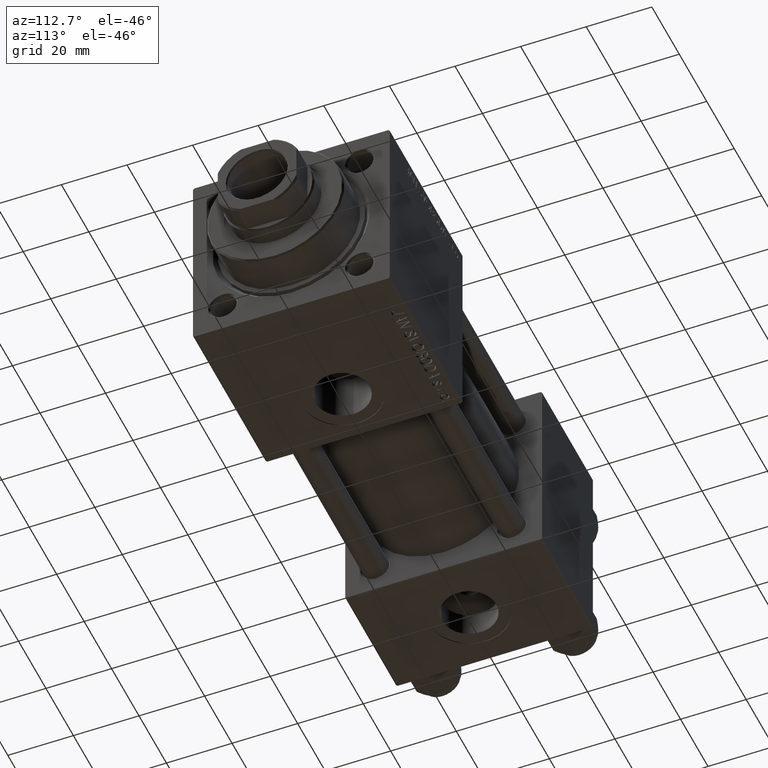
[diagram: clean part render]
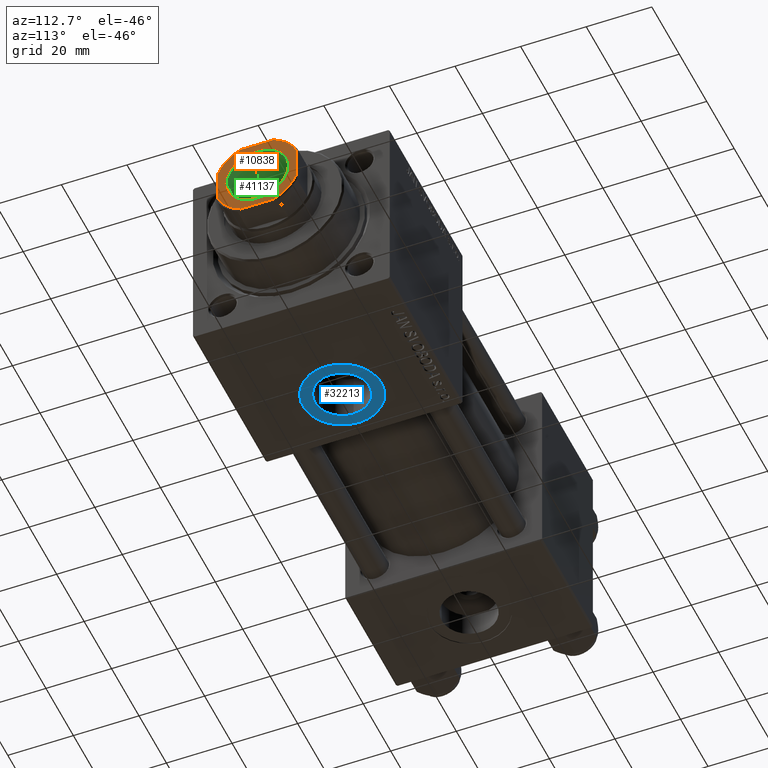
[diagram: same view with three faces highlighted in distinct colors, each labeled with its STEP entity id]
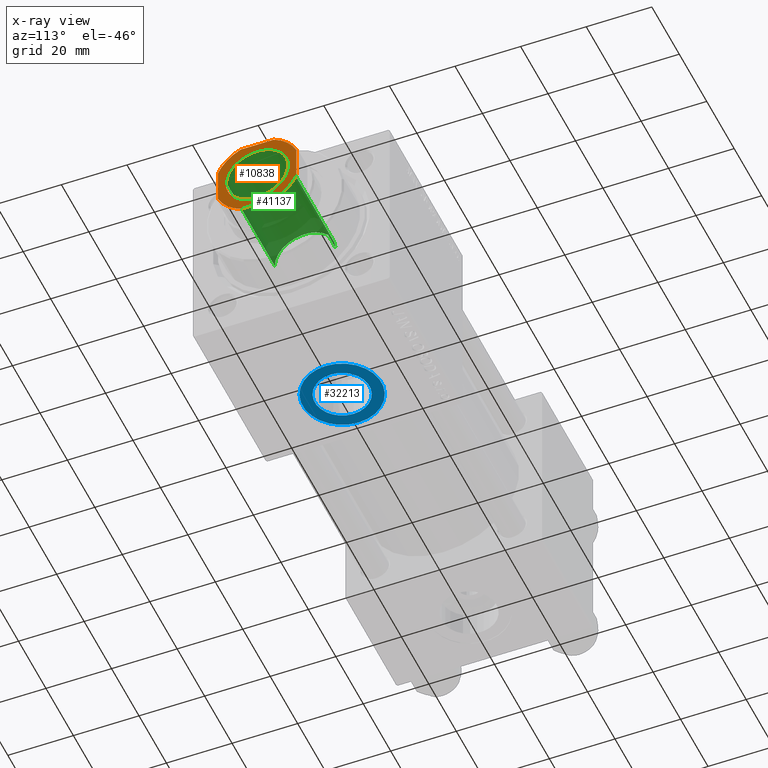
[diagram: x-ray of the same camera — body ghosted, the three highlighted faces saturated]
A machine part, auxiliary view with three faces highlighted in distinct colors.
The next image is the same camera in x-ray (body ghosted, the three faces saturated) — at least one of them is partly hidden behind the body in this view.
Their STEP definitions:

[orange] entity #10838 — the highlighted planar face has unit normal (1, 0, 0).
#24 = VERTEX_POINT ( 'NONE', #37870 ) ;
#1030 = DIRECTION ( 'NONE',  ( 1.000000000000000000, 0.000000000000000000, 0.000000000000000000 ) ) ;
#1404 = LINE ( 'NONE', #45811, #2542 ) ;
#1499 = DIRECTION ( 'NONE',  ( 7.228014483236695816E-17, -1.000000000000000000, 0.000000000000000000 ) ) ;
#1853 = DIRECTION ( 'NONE',  ( -0.000000000000000000, 0.000000000000000000, 1.000000000000000000 ) ) ;
#2056 = CARTESIAN_POINT ( 'NONE',  ( 0.000000000000000000, 0.000000000000000000, 136.0000000000000000 ) ) ;
#2216 = FACE_OUTER_BOUND ( 'NONE', #22733, .T. ) ;
#2223 = VERTEX_POINT ( 'NONE', #6493 ) ;
#2363 = ORIENTED_EDGE ( 'NONE', *, *, #4944, .T. ) ;
#2542 = VECTOR ( 'NONE', #46803, 1000.000000000000000 ) ;
#2609 = LINE ( 'NONE', #19169, #5156 ) ;
#3342 = CARTESIAN_POINT ( 'NONE',  ( 0.000000000000000000, 0.000000000000000000, 136.0000000000000000 ) ) ;
#4944 = EDGE_CURVE ( 'NONE', #51533, #5852, #44868, .T. ) ;
#5052 = CARTESIAN_POINT ( 'NONE',  ( -12.00000000000000000, 4.999999999999979572, 136.0000000000000000 ) ) ;
#5115 = AXIS2_PLACEMENT_3D ( 'NONE', #32278, #47296, #44369 ) ;
#5156 = VECTOR ( 'NONE', #14712, 1000.000000000000000 ) ;
#5558 = CARTESIAN_POINT ( 'NONE',  ( -9.549999999999975842, 1.169537693185719205E-15, 136.0000000000000000 ) ) ;
#5852 = VERTEX_POINT ( 'NONE', #21634 ) ;
#5910 = PLANE ( 'NONE',  #25246 ) ;
#6293 = EDGE_CURVE ( 'NONE', #24135, #51533, #47739, .T. ) ;
#6493 = CARTESIAN_POINT ( 'NONE',  ( 11.99999999999999822, 5.000000000000037303, 136.0000000000000000 ) ) ;
#6520 = DIRECTION ( 'NONE',  ( -0.000000000000000000, 0.000000000000000000, 1.000000000000000000 ) ) ;
#9273 = EDGE_CURVE ( 'NONE', #27870, #2223, #1404, .T. ) ;
#10116 = DIRECTION ( 'NONE',  ( 1.000000000000000000, 0.000000000000000000, 0.000000000000000000 ) ) ;
#10838 = ADVANCED_FACE ( 'NONE', ( #46104, #2216 ), #5910, .T. ) ;
#11301 = EDGE_CURVE ( 'NONE', #2223, #42247, #21908, .T. ) ;
#12447 = AXIS2_PLACEMENT_3D ( 'NONE', #35861, #27969, #50859 ) ;
#12492 = CARTESIAN_POINT ( 'NONE',  ( -4.999999999999987566, 11.99999999999999645, 136.0000000000000000 ) ) ;
#13194 = EDGE_CURVE ( 'NONE', #42247, #24135, #2609, .T. ) ;
#13375 = DIRECTION ( 'NONE',  ( 1.000000000000000000, 0.000000000000000000, 0.000000000000000000 ) ) ;
#13879 = ORIENTED_EDGE ( 'NONE', *, *, #44036, .T. ) ;
#14195 = ORIENTED_EDGE ( 'NONE', *, *, #6293, .T. ) ;
#14341 = CARTESIAN_POINT ( 'NONE',  ( 9.549999999999975842, 0.000000000000000000, 136.0000000000000000 ) ) ;
#14712 = DIRECTION ( 'NONE',  ( -1.000000000000000000, -0.000000000000000000, -0.000000000000000000 ) ) ;
#15252 = ORIENTED_EDGE ( 'NONE', *, *, #29958, .T. ) ;
#19169 = CARTESIAN_POINT ( 'NONE',  ( -12.00000000000000000, 11.99999999999999645, 136.0000000000000000 ) ) ;
#19179 = CIRCLE ( 'NONE', #12447, 13.00000000000002309 ) ;
#19709 = EDGE_CURVE ( 'NONE', #5852, #25809, #41652, .T. ) ;
#21634 = CARTESIAN_POINT ( 'NONE',  ( -12.00000000000000000, -5.000000000000039968, 136.0000000000000000 ) ) ;
#21908 = CIRCLE ( 'NONE', #51274, 13.00000000000001243 ) ;
#22684 = AXIS2_PLACEMENT_3D ( 'NONE', #42062, #1853, #33118 ) ;
#22733 = EDGE_LOOP ( 'NONE', ( #31438, #36029, #51713, #14195, #2363, #37154, #37573, #15252 ) ) ;
#24135 = VERTEX_POINT ( 'NONE', #12492 ) ;
#25086 = AXIS2_PLACEMENT_3D ( 'NONE', #3342, #35651, #50912 ) ;
#25246 = AXIS2_PLACEMENT_3D ( 'NONE', #49781, #42174, #10116 ) ;
#25809 = VERTEX_POINT ( 'NONE', #46165 ) ;
#27870 = VERTEX_POINT ( 'NONE', #45857 ) ;
#27913 = AXIS2_PLACEMENT_3D ( 'NONE', #51019, #30791, #31308 ) ;
#27969 = DIRECTION ( 'NONE',  ( -0.000000000000000000, 0.000000000000000000, 1.000000000000000000 ) ) ;
#29359 = CARTESIAN_POINT ( 'NONE',  ( -12.00000000000000000, 11.99999999999999645, 136.0000000000000000 ) ) ;
#29411 = LINE ( 'NONE', #41246, #49716 ) ;
#29958 = EDGE_CURVE ( 'NONE', #24, #27870, #19179, .T. ) ;
#30791 = DIRECTION ( 'NONE',  ( 0.000000000000000000, -0.000000000000000000, -1.000000000000000000 ) ) ;
#31308 = DIRECTION ( 'NONE',  ( 1.000000000000000000, 0.000000000000000000, 0.000000000000000000 ) ) ;
#31438 = ORIENTED_EDGE ( 'NONE', *, *, #9273, .T. ) ;
#32278 = CARTESIAN_POINT ( 'NONE',  ( 0.000000000000000000, 0.000000000000000000, 136.0000000000000000 ) ) ;
#33118 = DIRECTION ( 'NONE',  ( 1.000000000000000000, 0.000000000000000000, 0.000000000000000000 ) ) ;
#34431 = VERTEX_POINT ( 'NONE', #14341 ) ;
#35651 = DIRECTION ( 'NONE',  ( -0.000000000000000000, 0.000000000000000000, 1.000000000000000000 ) ) ;
#35861 = CARTESIAN_POINT ( 'NONE',  ( 0.000000000000000000, 0.000000000000000000, 136.0000000000000000 ) ) ;
#36029 = ORIENTED_EDGE ( 'NONE', *, *, #11301, .T. ) ;
#37154 = ORIENTED_EDGE ( 'NONE', *, *, #19709, .T. ) ;
#37573 = ORIENTED_EDGE ( 'NONE', *, *, #43143, .T. ) ;
#37870 = CARTESIAN_POINT ( 'NONE',  ( 5.000000000000053291, -12.00000000000000355, 136.0000000000000000 ) ) ;
#39234 = EDGE_CURVE ( 'NONE', #50650, #34431, #42046, .T. ) ;
#40157 = VECTOR ( 'NONE', #1499, 1000.000000000000000 ) ;
#41246 = CARTESIAN_POINT ( 'NONE',  ( -11.99999999999999822, -12.00000000000000355, 136.0000000000000000 ) ) ;
#41652 = CIRCLE ( 'NONE', #22684, 13.00000000000001421 ) ;
#42046 = CIRCLE ( 'NONE', #5115, 9.549999999999975842 ) ;
#42062 = CARTESIAN_POINT ( 'NONE',  ( 0.000000000000000000, 0.000000000000000000, 136.0000000000000000 ) ) ;
#42174 = DIRECTION ( 'NONE',  ( -0.000000000000000000, 0.000000000000000000, 1.000000000000000000 ) ) ;
#42247 = VERTEX_POINT ( 'NONE', #43115 ) ;
#43115 = CARTESIAN_POINT ( 'NONE',  ( 5.000000000000042633, 11.99999999999999645, 136.0000000000000000 ) ) ;
#43143 = EDGE_CURVE ( 'NONE', #25809, #24, #29411, .T. ) ;
#43775 = ORIENTED_EDGE ( 'NONE', *, *, #39234, .T. ) ;
#44036 = EDGE_CURVE ( 'NONE', #34431, #50650, #47218, .T. ) ;
#44273 = EDGE_LOOP ( 'NONE', ( #13879, #43775 ) ) ;
#44369 = DIRECTION ( 'NONE',  ( 1.000000000000000000, 0.000000000000000000, 0.000000000000000000 ) ) ;
#44868 = LINE ( 'NONE', #29359, #40157 ) ;
#45811 = CARTESIAN_POINT ( 'NONE',  ( 11.99999999999999645, 11.99999999999999645, 136.0000000000000000 ) ) ;
#45857 = CARTESIAN_POINT ( 'NONE',  ( 12.00000000000000178, -5.000000000000056843, 136.0000000000000000 ) ) ;
#46104 = FACE_BOUND ( 'NONE', #44273, .T. ) ;
#46165 = CARTESIAN_POINT ( 'NONE',  ( -5.000000000000031086, -12.00000000000000355, 136.0000000000000000 ) ) ;
#46803 = DIRECTION ( 'NONE',  ( -2.891205793294678326E-16, 1.000000000000000000, -0.000000000000000000 ) ) ;
#47218 = CIRCLE ( 'NONE', #27913, 9.549999999999975842 ) ;
#47296 = DIRECTION ( 'NONE',  ( 0.000000000000000000, -0.000000000000000000, -1.000000000000000000 ) ) ;
#47739 = CIRCLE ( 'NONE', #25086, 12.99999999999999289 ) ;
#49716 = VECTOR ( 'NONE', #1030, 1000.000000000000000 ) ;
#49781 = CARTESIAN_POINT ( 'NONE',  ( 0.000000000000000000, 0.000000000000000000, 136.0000000000000000 ) ) ;
#50650 = VERTEX_POINT ( 'NONE', #5558 ) ;
#50859 = DIRECTION ( 'NONE',  ( 1.000000000000000000, 0.000000000000000000, 0.000000000000000000 ) ) ;
#50912 = DIRECTION ( 'NONE',  ( 1.000000000000000000, 0.000000000000000000, 0.000000000000000000 ) ) ;
#51019 = CARTESIAN_POINT ( 'NONE',  ( 0.000000000000000000, 0.000000000000000000, 136.0000000000000000 ) ) ;
#51274 = AXIS2_PLACEMENT_3D ( 'NONE', #2056, #6520, #13375 ) ;
#51533 = VERTEX_POINT ( 'NONE', #5052 ) ;
#51713 = ORIENTED_EDGE ( 'NONE', *, *, #13194, .T. ) ;

[blue] entity #32213 — the highlighted planar face has unit normal (0, 0, -1).
#2824 = VERTEX_POINT ( 'NONE', #18439 ) ;
#3326 = ORIENTED_EDGE ( 'NONE', *, *, #20070, .T. ) ;
#3994 = ORIENTED_EDGE ( 'NONE', *, *, #4214, .F. ) ;
#4214 = EDGE_CURVE ( 'NONE', #25546, #2824, #19994, .T. ) ;
#4874 = EDGE_LOOP ( 'NONE', ( #3326, #34279 ) ) ;
#6372 = CIRCLE ( 'NONE', #51663, 8.330000000000003624 ) ;
#6917 = DIRECTION ( 'NONE',  ( 0.000000000000000000, 0.000000000000000000, -1.000000000000000000 ) ) ;
#9174 = AXIS2_PLACEMENT_3D ( 'NONE', #9194, #9455, #44667 ) ;
#9194 = CARTESIAN_POINT ( 'NONE',  ( 111.0000000000000000, 3.469446951953613794E-15, -29.79999999999999716 ) ) ;
#9455 = DIRECTION ( 'NONE',  ( 0.000000000000000000, 0.000000000000000000, -1.000000000000000000 ) ) ;
#10704 = VERTEX_POINT ( 'NONE', #36394 ) ;
#13880 = DIRECTION ( 'NONE',  ( -1.000000000000000000, 0.000000000000000000, 0.000000000000000000 ) ) ;
#15537 = ORIENTED_EDGE ( 'NONE', *, *, #20197, .F. ) ;
#18439 = CARTESIAN_POINT ( 'NONE',  ( 102.6700000000000017, 3.469446951953613794E-15, -29.79999999999999716 ) ) ;
#19994 = CIRCLE ( 'NONE', #23341, 8.330000000000003624 ) ;
#20070 = EDGE_CURVE ( 'NONE', #10704, #45597, #50822, .T. ) ;
#20197 = EDGE_CURVE ( 'NONE', #2824, #25546, #6372, .T. ) ;
#21720 = CIRCLE ( 'NONE', #51082, 11.99999999999999645 ) ;
#22435 = CARTESIAN_POINT ( 'NONE',  ( 111.0000000000000000, 3.469446951953613794E-15, -29.79999999999999716 ) ) ;
#23341 = AXIS2_PLACEMENT_3D ( 'NONE', #34068, #37754, #25935 ) ;
#25546 = VERTEX_POINT ( 'NONE', #42815 ) ;
#25935 = DIRECTION ( 'NONE',  ( -1.000000000000000000, 0.000000000000000000, 0.000000000000000000 ) ) ;
#27609 = EDGE_LOOP ( 'NONE', ( #15537, #3994 ) ) ;
#31039 = EDGE_CURVE ( 'NONE', #45597, #10704, #21720, .T. ) ;
#32213 = ADVANCED_FACE ( 'NONE', ( #45188, #40722 ), #36511, .T. ) ;
#32475 = CARTESIAN_POINT ( 'NONE',  ( 111.0000000000000000, 3.469446951953613794E-15, -29.79999999999999716 ) ) ;
#34068 = CARTESIAN_POINT ( 'NONE',  ( 111.0000000000000000, 3.469446951953613794E-15, -29.79999999999999716 ) ) ;
#34279 = ORIENTED_EDGE ( 'NONE', *, *, #31039, .T. ) ;
#36394 = CARTESIAN_POINT ( 'NONE',  ( 99.00000000000000000, 3.469446951953613794E-15, -29.79999999999999716 ) ) ;
#36511 = PLANE ( 'NONE',  #9174 ) ;
#36547 = AXIS2_PLACEMENT_3D ( 'NONE', #45666, #50122, #13880 ) ;
#37754 = DIRECTION ( 'NONE',  ( 0.000000000000000000, 0.000000000000000000, -1.000000000000000000 ) ) ;
#38450 = DIRECTION ( 'NONE',  ( -1.000000000000000000, 0.000000000000000000, 0.000000000000000000 ) ) ;
#39569 = CARTESIAN_POINT ( 'NONE',  ( 123.0000000000000000, 4.939023110930435178E-15, -29.79999999999999716 ) ) ;
#40722 = FACE_OUTER_BOUND ( 'NONE', #4874, .T. ) ;
#42815 = CARTESIAN_POINT ( 'NONE',  ( 119.3300000000000125, 4.489577735643358162E-15, -29.79999999999999716 ) ) ;
#43547 = DIRECTION ( 'NONE',  ( -1.000000000000000000, 0.000000000000000000, 0.000000000000000000 ) ) ;
#44572 = DIRECTION ( 'NONE',  ( 0.000000000000000000, 0.000000000000000000, -1.000000000000000000 ) ) ;
#44667 = DIRECTION ( 'NONE',  ( -1.000000000000000000, 0.000000000000000000, -0.000000000000000000 ) ) ;
#45188 = FACE_BOUND ( 'NONE', #27609, .T. ) ;
#45597 = VERTEX_POINT ( 'NONE', #39569 ) ;
#45666 = CARTESIAN_POINT ( 'NONE',  ( 111.0000000000000000, 3.469446951953613794E-15, -29.79999999999999716 ) ) ;
#50122 = DIRECTION ( 'NONE',  ( 0.000000000000000000, 0.000000000000000000, -1.000000000000000000 ) ) ;
#50822 = CIRCLE ( 'NONE', #36547, 11.99999999999999645 ) ;
#51082 = AXIS2_PLACEMENT_3D ( 'NONE', #22435, #6917, #38450 ) ;
#51663 = AXIS2_PLACEMENT_3D ( 'NONE', #32475, #44572, #43547 ) ;

[green] entity #41137 — the highlighted cylindrical surface (edge-blend (fillet) strip) has radius 9.25 mm, axis along (1, 0, 0).
#1657 = CARTESIAN_POINT ( 'NONE',  ( 0.000000000000000000, 0.000000000000000000, 136.0000000000000000 ) ) ;
#2689 = AXIS2_PLACEMENT_3D ( 'NONE', #3854, #11759, #31460 ) ;
#2707 = FACE_OUTER_BOUND ( 'NONE', #49285, .T. ) ;
#3788 = CARTESIAN_POINT ( 'NONE',  ( 0.000000000000000000, 0.000000000000000000, 135.7000000000000455 ) ) ;
#3854 = CARTESIAN_POINT ( 'NONE',  ( 0.000000000000000000, 0.000000000000000000, 101.0000000000000000 ) ) ;
#7206 = ORIENTED_EDGE ( 'NONE', *, *, #38728, .F. ) ;
#11057 = AXIS2_PLACEMENT_3D ( 'NONE', #1657, #33453, #45797 ) ;
#11759 = DIRECTION ( 'NONE',  ( -0.000000000000000000, -0.000000000000000000, 1.000000000000000000 ) ) ;
#13496 = ORIENTED_EDGE ( 'NONE', *, *, #13994, .F. ) ;
#13994 = EDGE_CURVE ( 'NONE', #37055, #29589, #32056, .T. ) ;
#17246 = VECTOR ( 'NONE', #26833, 1000.000000000000000 ) ;
#22018 = EDGE_CURVE ( 'NONE', #25796, #50763, #29923, .T. ) ;
#23509 = EDGE_CURVE ( 'NONE', #37055, #25796, #43122, .T. ) ;
#24058 = CARTESIAN_POINT ( 'NONE',  ( 9.249999999999994671, 0.000000000000000000, 136.0000000000000000 ) ) ;
#25796 = VERTEX_POINT ( 'NONE', #38021 ) ;
#26833 = DIRECTION ( 'NONE',  ( -0.000000000000000000, -0.000000000000000000, 1.000000000000000000 ) ) ;
#28124 = ORIENTED_EDGE ( 'NONE', *, *, #22018, .T. ) ;
#29589 = VERTEX_POINT ( 'NONE', #37528 ) ;
#29923 = CIRCLE ( 'NONE', #30759, 9.249999999999994671 ) ;
#30512 = CARTESIAN_POINT ( 'NONE',  ( -9.249999999999992895, 1.132798289211300712E-15, 101.0000000000000000 ) ) ;
#30515 = CARTESIAN_POINT ( 'NONE',  ( -9.249999999999994671, 1.132798289211300909E-15, 136.0000000000000000 ) ) ;
#30759 = AXIS2_PLACEMENT_3D ( 'NONE', #3788, #51867, #51367 ) ;
#31120 = VECTOR ( 'NONE', #40076, 1000.000000000000000 ) ;
#31460 = DIRECTION ( 'NONE',  ( 1.000000000000000000, 0.000000000000000000, 0.000000000000000000 ) ) ;
#32056 = CIRCLE ( 'NONE', #2689, 9.249999999999992895 ) ;
#33453 = DIRECTION ( 'NONE',  ( -0.000000000000000000, -0.000000000000000000, 1.000000000000000000 ) ) ;
#34730 = CARTESIAN_POINT ( 'NONE',  ( 9.249999999999994671, 0.000000000000000000, 135.7000000000000455 ) ) ;
#36581 = ORIENTED_EDGE ( 'NONE', *, *, #23509, .T. ) ;
#37055 = VERTEX_POINT ( 'NONE', #30512 ) ;
#37528 = CARTESIAN_POINT ( 'NONE',  ( 9.249999999999992895, 0.000000000000000000, 101.0000000000000000 ) ) ;
#37654 = CYLINDRICAL_SURFACE ( 'NONE', #11057, 9.249999999999994671 ) ;
#38021 = CARTESIAN_POINT ( 'NONE',  ( -9.249999999999994671, 1.132798289211300909E-15, 135.7000000000000455 ) ) ;
#38728 = EDGE_CURVE ( 'NONE', #29589, #50763, #39313, .T. ) ;
#39313 = LINE ( 'NONE', #24058, #31120 ) ;
#40076 = DIRECTION ( 'NONE',  ( -0.000000000000000000, -0.000000000000000000, 1.000000000000000000 ) ) ;
#41137 = ADVANCED_FACE ( 'NONE', ( #2707 ), #37654, .F. ) ;
#43122 = LINE ( 'NONE', #30515, #17246 ) ;
#45797 = DIRECTION ( 'NONE',  ( 1.000000000000000000, 0.000000000000000000, 0.000000000000000000 ) ) ;
#49285 = EDGE_LOOP ( 'NONE', ( #13496, #36581, #28124, #7206 ) ) ;
#50763 = VERTEX_POINT ( 'NONE', #34730 ) ;
#51367 = DIRECTION ( 'NONE',  ( 1.000000000000000000, 0.000000000000000000, 0.000000000000000000 ) ) ;
#51867 = DIRECTION ( 'NONE',  ( 0.000000000000000000, 0.000000000000000000, 1.000000000000000000 ) ) ;